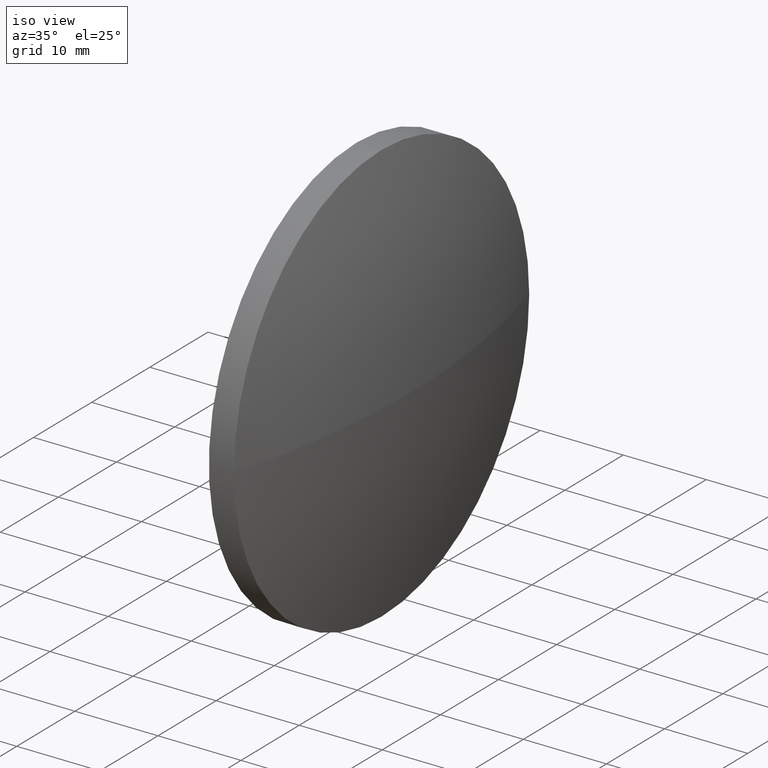
[diagram: clean part render]
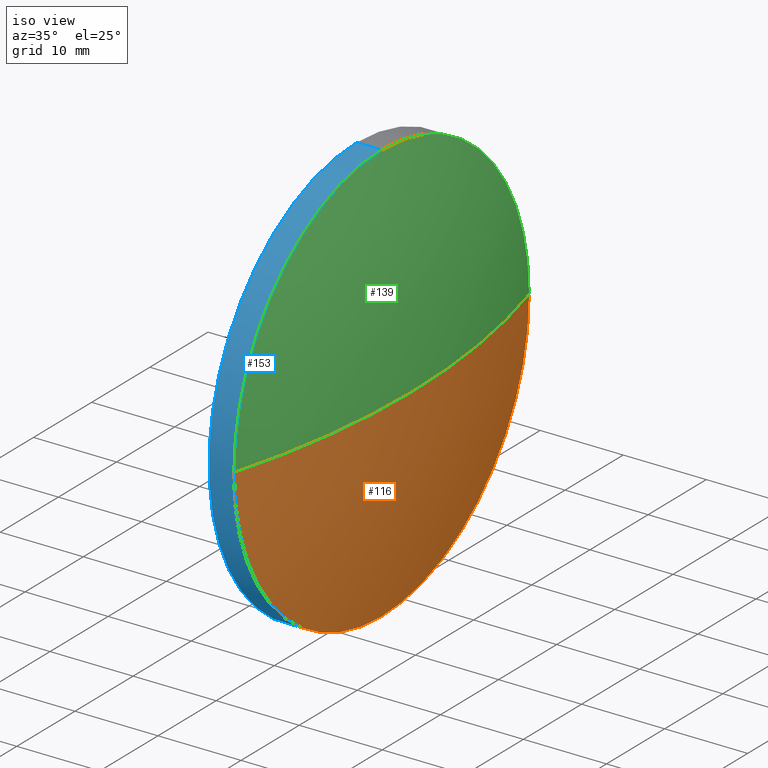
[diagram: same view with three faces highlighted in distinct colors, each labeled with its STEP entity id]
A machine part, iso view with three faces highlighted in distinct colors.
Their STEP definitions:

[orange] entity #116 — the highlighted spherical surface has radius 91.4056 mm.
#8 = DIRECTION ( 'NONE',  ( -0.0000000000000000000, 0.0000000000000000000, 1.000000000000000000 ) ) ;
#9 = AXIS2_PLACEMENT_3D ( 'NONE', #42, #8, #110 ) ;
#10 = VERTEX_POINT ( 'NONE', #90 ) ;
#14 = EDGE_CURVE ( 'NONE', #27, #10, #36, .T. ) ;
#15 = ORIENTED_EDGE ( 'NONE', *, *, #183, .F. ) ;
#16 = CARTESIAN_POINT ( 'NONE',  ( 543.4485991064416300, 128.9177711168333400, 0.0000000000000000000 ) ) ;
#22 = CIRCLE ( 'NONE', #84, 25.40000000000000600 ) ;
#25 = CARTESIAN_POINT ( 'NONE',  ( 543.4485991064416300, 103.5177711168334200, 0.0000000000000000000 ) ) ;
#27 = VERTEX_POINT ( 'NONE', #30 ) ;
#30 = CARTESIAN_POINT ( 'NONE',  ( 543.4485991064416300, 103.5177711168334200, -25.40000000000000600 ) ) ;
#33 = CIRCLE ( 'NONE', #148, 91.40555555555559400 ) ;
#36 = CIRCLE ( 'NONE', #120, 25.40000000000000600 ) ;
#40 = EDGE_CURVE ( 'NONE', #140, #10, #33, .T. ) ;
#41 = FACE_OUTER_BOUND ( 'NONE', #182, .T. ) ;
#42 = CARTESIAN_POINT ( 'NONE',  ( 455.6430435508859800, 103.5177711168334200, 0.0000000000000000000 ) ) ;
#48 = CARTESIAN_POINT ( 'NONE',  ( 455.6430435508859800, 103.5177711168334200, 0.0000000000000000000 ) ) ;
#58 = ORIENTED_EDGE ( 'NONE', *, *, #108, .F. ) ;
#66 = DIRECTION ( 'NONE',  ( -0.0000000000000000000, 0.0000000000000000000, -1.000000000000000000 ) ) ;
#68 = DIRECTION ( 'NONE',  ( 0.0000000000000000000, 0.0000000000000000000, 1.000000000000000000 ) ) ;
#70 = DIRECTION ( 'NONE',  ( 0.0000000000000000000, 0.0000000000000000000, 1.000000000000000000 ) ) ;
#73 = AXIS2_PLACEMENT_3D ( 'NONE', #83, #66, #152 ) ;
#83 = CARTESIAN_POINT ( 'NONE',  ( 455.6430435508859800, 103.5177711168334200, 0.0000000000000000000 ) ) ;
#84 = AXIS2_PLACEMENT_3D ( 'NONE', #25, #129, #70 ) ;
#86 = CARTESIAN_POINT ( 'NONE',  ( 543.4485991064416300, 103.5177711168334200, 0.0000000000000000000 ) ) ;
#90 = CARTESIAN_POINT ( 'NONE',  ( 543.4485991064416300, 78.11777111683346700, -3.110602869834270200E-015 ) ) ;
#101 = DIRECTION ( 'NONE',  ( 0.0000000000000000000, 1.000000000000000000, 1.224646799147353500E-016 ) ) ;
#106 = VERTEX_POINT ( 'NONE', #16 ) ;
#108 = EDGE_CURVE ( 'NONE', #140, #106, #179, .T. ) ;
#110 = DIRECTION ( 'NONE',  ( 1.000000000000000000, 0.0000000000000000000, 0.0000000000000000000 ) ) ;
#115 = DIRECTION ( 'NONE',  ( -1.000000000000000000, -0.0000000000000000000, -0.0000000000000000000 ) ) ;
#116 = ADVANCED_FACE ( 'NONE', ( #41 ), #145, .T. ) ;
#120 = AXIS2_PLACEMENT_3D ( 'NONE', #86, #115, #68 ) ;
#127 = CARTESIAN_POINT ( 'NONE',  ( 547.0485991064415400, 103.5177711168334200, 0.0000000000000000000 ) ) ;
#129 = DIRECTION ( 'NONE',  ( -1.000000000000000000, -0.0000000000000000000, -0.0000000000000000000 ) ) ;
#130 = DIRECTION ( 'NONE',  ( 0.0000000000000000000, 1.224646799147353200E-016, -1.000000000000000000 ) ) ;
#132 = ORIENTED_EDGE ( 'NONE', *, *, #40, .T. ) ;
#135 = ORIENTED_EDGE ( 'NONE', *, *, #14, .F. ) ;
#140 = VERTEX_POINT ( 'NONE', #127 ) ;
#145 = SPHERICAL_SURFACE ( 'NONE', #73, 91.40555555555559400 ) ;
#148 = AXIS2_PLACEMENT_3D ( 'NONE', #48, #130, #101 ) ;
#152 = DIRECTION ( 'NONE',  ( 0.0000000000000000000, 1.000000000000000000, 0.0000000000000000000 ) ) ;
#179 = CIRCLE ( 'NONE', #9, 91.40555555555558000 ) ;
#182 = EDGE_LOOP ( 'NONE', ( #58, #132, #135, #15 ) ) ;
#183 = EDGE_CURVE ( 'NONE', #106, #27, #22, .T. ) ;

[blue] entity #153 — the highlighted cylindrical surface (partial cylindrical patch) has radius 25.4 mm, axis along (-1, -0, -0).
#3 = CARTESIAN_POINT ( 'NONE',  ( 528.7585254841761800, 103.5177711168334200, -25.40000000000000600 ) ) ;
#4 = CARTESIAN_POINT ( 'NONE',  ( 540.4485991064416300, 103.5177711168334200, 25.40000000000000600 ) ) ;
#5 = DIRECTION ( 'NONE',  ( 0.0000000000000000000, 0.0000000000000000000, 1.000000000000000000 ) ) ;
#10 = VERTEX_POINT ( 'NONE', #90 ) ;
#13 = CARTESIAN_POINT ( 'NONE',  ( 540.4485991064416300, 103.5177711168334200, 0.0000000000000000000 ) ) ;
#14 = EDGE_CURVE ( 'NONE', #27, #10, #36, .T. ) ;
#19 = ORIENTED_EDGE ( 'NONE', *, *, #96, .F. ) ;
#23 = VERTEX_POINT ( 'NONE', #76 ) ;
#24 = EDGE_CURVE ( 'NONE', #27, #167, #176, .T. ) ;
#27 = VERTEX_POINT ( 'NONE', #30 ) ;
#30 = CARTESIAN_POINT ( 'NONE',  ( 543.4485991064416300, 103.5177711168334200, -25.40000000000000600 ) ) ;
#32 = EDGE_CURVE ( 'NONE', #23, #60, #95, .T. ) ;
#36 = CIRCLE ( 'NONE', #120, 25.40000000000000600 ) ;
#45 = CIRCLE ( 'NONE', #112, 25.40000000000000600 ) ;
#46 = CARTESIAN_POINT ( 'NONE',  ( 540.4485991064416300, 103.5177711168334200, -25.40000000000000600 ) ) ;
#49 = ORIENTED_EDGE ( 'NONE', *, *, #32, .T. ) ;
#51 = CARTESIAN_POINT ( 'NONE',  ( 543.4485991064416300, 103.5177711168334200, 0.0000000000000000000 ) ) ;
#54 = EDGE_LOOP ( 'NONE', ( #128, #98, #170, #49, #19 ) ) ;
#56 = AXIS2_PLACEMENT_3D ( 'NONE', #13, #119, #171 ) ;
#60 = VERTEX_POINT ( 'NONE', #4 ) ;
#65 = DIRECTION ( 'NONE',  ( -1.000000000000000000, -0.0000000000000000000, -0.0000000000000000000 ) ) ;
#67 = CIRCLE ( 'NONE', #56, 25.40000000000000600 ) ;
#68 = DIRECTION ( 'NONE',  ( 0.0000000000000000000, 0.0000000000000000000, 1.000000000000000000 ) ) ;
#71 = FACE_OUTER_BOUND ( 'NONE', #54, .T. ) ;
#75 = DIRECTION ( 'NONE',  ( -1.000000000000000000, -0.0000000000000000000, -0.0000000000000000000 ) ) ;
#76 = CARTESIAN_POINT ( 'NONE',  ( 543.4485991064416300, 103.5177711168334200, 25.40000000000000600 ) ) ;
#77 = CYLINDRICAL_SURFACE ( 'NONE', #157, 25.40000000000000600 ) ;
#86 = CARTESIAN_POINT ( 'NONE',  ( 543.4485991064416300, 103.5177711168334200, 0.0000000000000000000 ) ) ;
#89 = EDGE_CURVE ( 'NONE', #10, #23, #45, .T. ) ;
#90 = CARTESIAN_POINT ( 'NONE',  ( 543.4485991064416300, 78.11777111683346700, -3.110602869834270200E-015 ) ) ;
#95 = LINE ( 'NONE', #158, #133 ) ;
#96 = EDGE_CURVE ( 'NONE', #167, #60, #67, .T. ) ;
#98 = ORIENTED_EDGE ( 'NONE', *, *, #14, .T. ) ;
#112 = AXIS2_PLACEMENT_3D ( 'NONE', #51, #173, #5 ) ;
#115 = DIRECTION ( 'NONE',  ( -1.000000000000000000, -0.0000000000000000000, -0.0000000000000000000 ) ) ;
#119 = DIRECTION ( 'NONE',  ( -1.000000000000000000, -0.0000000000000000000, -0.0000000000000000000 ) ) ;
#120 = AXIS2_PLACEMENT_3D ( 'NONE', #86, #115, #68 ) ;
#128 = ORIENTED_EDGE ( 'NONE', *, *, #24, .F. ) ;
#133 = VECTOR ( 'NONE', #75, 1000.000000000000000 ) ;
#138 = VECTOR ( 'NONE', #143, 1000.000000000000000 ) ;
#143 = DIRECTION ( 'NONE',  ( -1.000000000000000000, -0.0000000000000000000, -0.0000000000000000000 ) ) ;
#150 = CARTESIAN_POINT ( 'NONE',  ( 528.7585254841761800, 103.5177711168334200, 0.0000000000000000000 ) ) ;
#153 = ADVANCED_FACE ( 'NONE', ( #71 ), #77, .T. ) ;
#157 = AXIS2_PLACEMENT_3D ( 'NONE', #150, #65, #162 ) ;
#158 = CARTESIAN_POINT ( 'NONE',  ( 528.7585254841761800, 103.5177711168334200, 25.40000000000000600 ) ) ;
#162 = DIRECTION ( 'NONE',  ( 0.0000000000000000000, 0.0000000000000000000, 1.000000000000000000 ) ) ;
#167 = VERTEX_POINT ( 'NONE', #46 ) ;
#170 = ORIENTED_EDGE ( 'NONE', *, *, #89, .T. ) ;
#171 = DIRECTION ( 'NONE',  ( 0.0000000000000000000, 0.0000000000000000000, 1.000000000000000000 ) ) ;
#173 = DIRECTION ( 'NONE',  ( -1.000000000000000000, -0.0000000000000000000, -0.0000000000000000000 ) ) ;
#176 = LINE ( 'NONE', #3, #138 ) ;

[green] entity #139 — the highlighted spherical surface has radius 91.4056 mm.
#5 = DIRECTION ( 'NONE',  ( 0.0000000000000000000, 0.0000000000000000000, 1.000000000000000000 ) ) ;
#8 = DIRECTION ( 'NONE',  ( -0.0000000000000000000, 0.0000000000000000000, 1.000000000000000000 ) ) ;
#9 = AXIS2_PLACEMENT_3D ( 'NONE', #42, #8, #110 ) ;
#10 = VERTEX_POINT ( 'NONE', #90 ) ;
#16 = CARTESIAN_POINT ( 'NONE',  ( 543.4485991064416300, 128.9177711168333400, 0.0000000000000000000 ) ) ;
#20 = DIRECTION ( 'NONE',  ( 0.0000000000000000000, 1.000000000000000000, 0.0000000000000000000 ) ) ;
#23 = VERTEX_POINT ( 'NONE', #76 ) ;
#29 = CIRCLE ( 'NONE', #165, 25.40000000000000600 ) ;
#33 = CIRCLE ( 'NONE', #148, 91.40555555555559400 ) ;
#40 = EDGE_CURVE ( 'NONE', #140, #10, #33, .T. ) ;
#42 = CARTESIAN_POINT ( 'NONE',  ( 455.6430435508859800, 103.5177711168334200, 0.0000000000000000000 ) ) ;
#43 = EDGE_CURVE ( 'NONE', #23, #106, #29, .T. ) ;
#45 = CIRCLE ( 'NONE', #112, 25.40000000000000600 ) ;
#48 = CARTESIAN_POINT ( 'NONE',  ( 455.6430435508859800, 103.5177711168334200, 0.0000000000000000000 ) ) ;
#51 = CARTESIAN_POINT ( 'NONE',  ( 543.4485991064416300, 103.5177711168334200, 0.0000000000000000000 ) ) ;
#59 = AXIS2_PLACEMENT_3D ( 'NONE', #81, #164, #20 ) ;
#61 = CARTESIAN_POINT ( 'NONE',  ( 543.4485991064416300, 103.5177711168334200, 0.0000000000000000000 ) ) ;
#74 = ORIENTED_EDGE ( 'NONE', *, *, #89, .F. ) ;
#76 = CARTESIAN_POINT ( 'NONE',  ( 543.4485991064416300, 103.5177711168334200, 25.40000000000000600 ) ) ;
#81 = CARTESIAN_POINT ( 'NONE',  ( 455.6430435508859800, 103.5177711168334200, 0.0000000000000000000 ) ) ;
#89 = EDGE_CURVE ( 'NONE', #10, #23, #45, .T. ) ;
#90 = CARTESIAN_POINT ( 'NONE',  ( 543.4485991064416300, 78.11777111683346700, -3.110602869834270200E-015 ) ) ;
#94 = EDGE_LOOP ( 'NONE', ( #147, #168, #178, #74 ) ) ;
#101 = DIRECTION ( 'NONE',  ( 0.0000000000000000000, 1.000000000000000000, 1.224646799147353500E-016 ) ) ;
#106 = VERTEX_POINT ( 'NONE', #16 ) ;
#108 = EDGE_CURVE ( 'NONE', #140, #106, #179, .T. ) ;
#110 = DIRECTION ( 'NONE',  ( 1.000000000000000000, 0.0000000000000000000, 0.0000000000000000000 ) ) ;
#112 = AXIS2_PLACEMENT_3D ( 'NONE', #51, #173, #5 ) ;
#127 = CARTESIAN_POINT ( 'NONE',  ( 547.0485991064415400, 103.5177711168334200, 0.0000000000000000000 ) ) ;
#130 = DIRECTION ( 'NONE',  ( 0.0000000000000000000, 1.224646799147353200E-016, -1.000000000000000000 ) ) ;
#134 = DIRECTION ( 'NONE',  ( 0.0000000000000000000, 0.0000000000000000000, 1.000000000000000000 ) ) ;
#139 = ADVANCED_FACE ( 'NONE', ( #142 ), #151, .T. ) ;
#140 = VERTEX_POINT ( 'NONE', #127 ) ;
#142 = FACE_OUTER_BOUND ( 'NONE', #94, .T. ) ;
#146 = DIRECTION ( 'NONE',  ( -1.000000000000000000, -0.0000000000000000000, -0.0000000000000000000 ) ) ;
#147 = ORIENTED_EDGE ( 'NONE', *, *, #40, .F. ) ;
#148 = AXIS2_PLACEMENT_3D ( 'NONE', #48, #130, #101 ) ;
#151 = SPHERICAL_SURFACE ( 'NONE', #59, 91.40555555555559400 ) ;
#164 = DIRECTION ( 'NONE',  ( -0.0000000000000000000, 0.0000000000000000000, -1.000000000000000000 ) ) ;
#165 = AXIS2_PLACEMENT_3D ( 'NONE', #61, #146, #134 ) ;
#168 = ORIENTED_EDGE ( 'NONE', *, *, #108, .T. ) ;
#173 = DIRECTION ( 'NONE',  ( -1.000000000000000000, -0.0000000000000000000, -0.0000000000000000000 ) ) ;
#178 = ORIENTED_EDGE ( 'NONE', *, *, #43, .F. ) ;
#179 = CIRCLE ( 'NONE', #9, 91.40555555555558000 ) ;